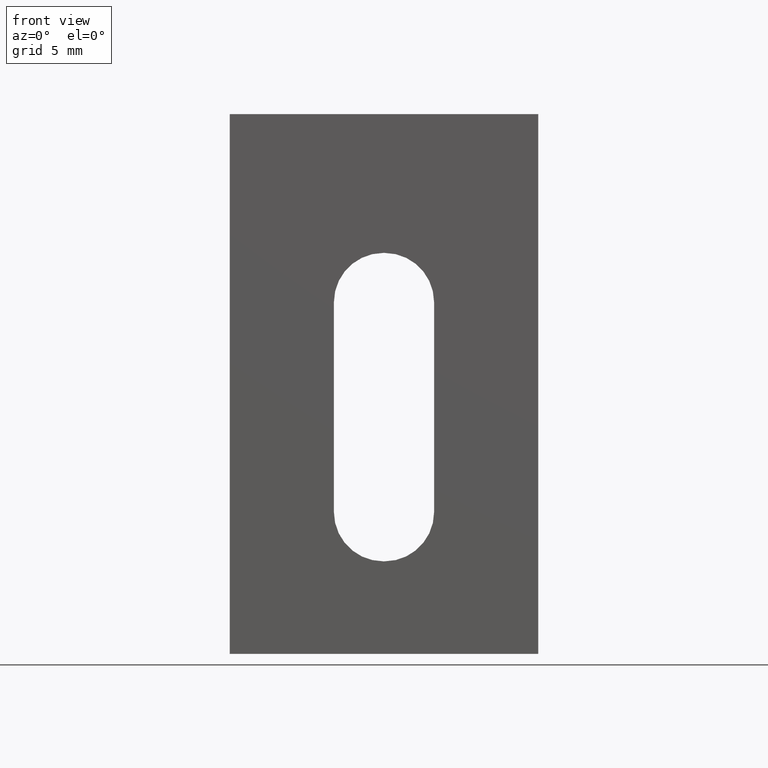
[diagram: clean part render]
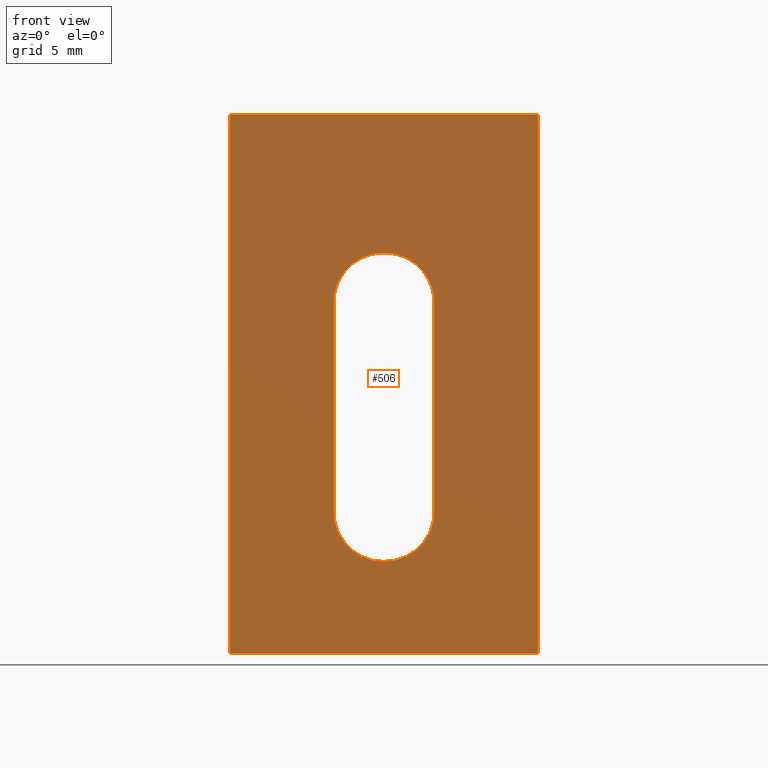
[diagram: same view with one face highlighted and labeled with its STEP entity id]
A machine part, front view. The second image highlights one B-rep face of the part: STEP entity #506.
In plain terms, the highlighted planar face has unit normal (-0, 1, 0).
Its self-contained STEP definition (entity closure, byte-faithful):
#3 = CARTESIAN_POINT ( 'NONE',  ( 0.0000000000000000000, 0.0000000000000000000, 0.0000000000000000000 ) ) ;
#5 = CARTESIAN_POINT ( 'NONE',  ( 20.00000000000000000, 0.0000000000000000000, -35.00000000000000000 ) ) ;
#13 = CARTESIAN_POINT ( 'NONE',  ( 20.00000000000000000, 0.0000000000000000000, 0.0000000000000000000 ) ) ;
#16 = CARTESIAN_POINT ( 'NONE',  ( 10.05000000000000600, -8.673617379884035500E-016, -29.00000000000000700 ) ) ;
#17 = VERTEX_POINT ( 'NONE', #70 ) ;
#19 = VERTEX_POINT ( 'NONE', #13 ) ;
#20 = VERTEX_POINT ( 'NONE', #31 ) ;
#21 = VERTEX_POINT ( 'NONE', #58 ) ;
#24 = VERTEX_POINT ( 'NONE', #68 ) ;
#25 = VERTEX_POINT ( 'NONE', #3 ) ;
#26 = CARTESIAN_POINT ( 'NONE',  ( 13.25000000000000900, -1.422473250300982000E-015, -25.80000000000000800 ) ) ;
#31 = CARTESIAN_POINT ( 'NONE',  ( 10.05000000000000400, -4.336808689942017700E-015, -9.000000000000007100 ) ) ;
#39 = CARTESIAN_POINT ( 'NONE',  ( 6.750000000000008000, -3.781697177629438700E-015, -12.20000000000001000 ) ) ;
#43 = VERTEX_POINT ( 'NONE', #26 ) ;
#45 = VERTEX_POINT ( 'NONE', #39 ) ;
#50 = VERTEX_POINT ( 'NONE', #16 ) ;
#58 = CARTESIAN_POINT ( 'NONE',  ( 6.750000000000008000, -1.422473250300982200E-015, -25.80000000000000400 ) ) ;
#63 = VERTEX_POINT ( 'NONE', #5 ) ;
#68 = CARTESIAN_POINT ( 'NONE',  ( 9.950000000000006400, -8.673617379884035500E-016, -29.00000000000000400 ) ) ;
#69 = CARTESIAN_POINT ( 'NONE',  ( 9.950000000000008200, -4.336808689942017700E-015, -9.000000000000007100 ) ) ;
#70 = CARTESIAN_POINT ( 'NONE',  ( 0.0000000000000000000, 0.0000000000000000000, -35.00000000000000000 ) ) ;
#79 = CARTESIAN_POINT ( 'NONE',  ( 13.25000000000000500, -3.781697177629438700E-015, -12.20000000000000600 ) ) ;
#85 = VERTEX_POINT ( 'NONE', #69 ) ;
#89 = VERTEX_POINT ( 'NONE', #79 ) ;
#108 = PLANE ( 'NONE',  #451 ) ;
#110 = CARTESIAN_POINT ( 'NONE',  ( 10.05000000000000400, 0.0000000000000000000, -12.20000000000000600 ) ) ;
#111 = DIRECTION ( 'NONE',  ( 0.0000000000000000000, 0.0000000000000000000, 1.000000000000000000 ) ) ;
#112 = DIRECTION ( 'NONE',  ( -0.0000000000000000000, 1.000000000000000000, 0.0000000000000000000 ) ) ;
#121 = DIRECTION ( 'NONE',  ( -0.0000000000000000000, 1.000000000000000000, 0.0000000000000000000 ) ) ;
#122 = CARTESIAN_POINT ( 'NONE',  ( 20.00000000000000000, 0.0000000000000000000, 0.0000000000000000000 ) ) ;
#123 = DIRECTION ( 'NONE',  ( 0.0000000000000000000, -0.0000000000000000000, 1.000000000000000000 ) ) ;
#140 = CARTESIAN_POINT ( 'NONE',  ( 6.750000000000008000, -8.673617379884035500E-016, -29.00000000000000400 ) ) ;
#163 = DIRECTION ( 'NONE',  ( 0.0000000000000000000, -1.734723475976807300E-016, 1.000000000000000000 ) ) ;
#168 = VECTOR ( 'NONE', #480, 1000.000000000000000 ) ;
#169 = ORIENTED_EDGE ( 'NONE', *, *, #556, .T. ) ;
#176 = ORIENTED_EDGE ( 'NONE', *, *, #568, .T. ) ;
#179 = FACE_BOUND ( 'NONE', #191, .T. ) ;
#191 = EDGE_LOOP ( 'NONE', ( #318, #253, #208, #202, #169, #249, #363, #348 ) ) ;
#193 = VECTOR ( 'NONE', #463, 1000.000000000000000 ) ;
#196 = LINE ( 'NONE', #543, #375 ) ;
#202 = ORIENTED_EDGE ( 'NONE', *, *, #575, .T. ) ;
#208 = ORIENTED_EDGE ( 'NONE', *, *, #640, .T. ) ;
#210 = ORIENTED_EDGE ( 'NONE', *, *, #639, .T. ) ;
#234 = CIRCLE ( 'NONE', #452, 3.199999999999999700 ) ;
#244 = LINE ( 'NONE', #140, #379 ) ;
#246 = FACE_OUTER_BOUND ( 'NONE', #265, .T. ) ;
#248 = VECTOR ( 'NONE', #485, 1000.000000000000000 ) ;
#249 = ORIENTED_EDGE ( 'NONE', *, *, #567, .T. ) ;
#253 = ORIENTED_EDGE ( 'NONE', *, *, #565, .T. ) ;
#255 = ORIENTED_EDGE ( 'NONE', *, *, #646, .F. ) ;
#261 = LINE ( 'NONE', #524, #360 ) ;
#265 = EDGE_LOOP ( 'NONE', ( #176, #353, #255, #210 ) ) ;
#267 = CIRCLE ( 'NONE', #444, 3.200000000000001500 ) ;
#277 = VECTOR ( 'NONE', #533, 1000.000000000000000 ) ;
#292 = CIRCLE ( 'NONE', #622, 3.200000000000001500 ) ;
#305 = LINE ( 'NONE', #457, #193 ) ;
#308 = LINE ( 'NONE', #459, #168 ) ;
#318 = ORIENTED_EDGE ( 'NONE', *, *, #564, .T. ) ;
#338 = LINE ( 'NONE', #531, #277 ) ;
#342 = CIRCLE ( 'NONE', #607, 3.199999999999999700 ) ;
#348 = ORIENTED_EDGE ( 'NONE', *, *, #561, .T. ) ;
#353 = ORIENTED_EDGE ( 'NONE', *, *, #569, .F. ) ;
#356 = LINE ( 'NONE', #462, #248 ) ;
#360 = VECTOR ( 'NONE', #527, 1000.000000000000000 ) ;
#363 = ORIENTED_EDGE ( 'NONE', *, *, #647, .T. ) ;
#366 = VECTOR ( 'NONE', #530, 1000.000000000000000 ) ;
#375 = VECTOR ( 'NONE', #545, 1000.000000000000000 ) ;
#379 = VECTOR ( 'NONE', #163, 1000.000000000000000 ) ;
#388 = LINE ( 'NONE', #520, #366 ) ;
#444 = AXIS2_PLACEMENT_3D ( 'NONE', #454, #483, #460 ) ;
#451 = AXIS2_PLACEMENT_3D ( 'NONE', #122, #121, #123 ) ;
#452 = AXIS2_PLACEMENT_3D ( 'NONE', #110, #112, #111 ) ;
#454 = CARTESIAN_POINT ( 'NONE',  ( 10.05000000000000800, 0.0000000000000000000, -25.80000000000000800 ) ) ;
#457 = CARTESIAN_POINT ( 'NONE',  ( 20.00000000000000000, 0.0000000000000000000, -35.00000000000000000 ) ) ;
#459 = CARTESIAN_POINT ( 'NONE',  ( 0.0000000000000000000, 0.0000000000000000000, 0.0000000000000000000 ) ) ;
#460 = DIRECTION ( 'NONE',  ( 0.0000000000000000000, 0.0000000000000000000, 1.000000000000000000 ) ) ;
#462 = CARTESIAN_POINT ( 'NONE',  ( 13.25000000000000900, -8.673617379884035500E-016, -29.00000000000000700 ) ) ;
#463 = DIRECTION ( 'NONE',  ( -1.000000000000000000, -0.0000000000000000000, -0.0000000000000000000 ) ) ;
#468 = DIRECTION ( 'NONE',  ( 0.0000000000000000000, 0.0000000000000000000, 1.000000000000000000 ) ) ;
#471 = CARTESIAN_POINT ( 'NONE',  ( 9.950000000000008200, 0.0000000000000000000, -25.80000000000000400 ) ) ;
#472 = DIRECTION ( 'NONE',  ( -0.0000000000000000000, 1.000000000000000000, 0.0000000000000000000 ) ) ;
#474 = CARTESIAN_POINT ( 'NONE',  ( 9.950000000000008200, 0.0000000000000000000, -12.20000000000000800 ) ) ;
#478 = DIRECTION ( 'NONE',  ( 0.0000000000000000000, 0.0000000000000000000, 1.000000000000000000 ) ) ;
#480 = DIRECTION ( 'NONE',  ( 0.0000000000000000000, 0.0000000000000000000, -1.000000000000000000 ) ) ;
#482 = DIRECTION ( 'NONE',  ( -0.0000000000000000000, 1.000000000000000000, 0.0000000000000000000 ) ) ;
#483 = DIRECTION ( 'NONE',  ( -0.0000000000000000000, 1.000000000000000000, 0.0000000000000000000 ) ) ;
#485 = DIRECTION ( 'NONE',  ( 1.734723475976806800E-016, 1.734723475976806800E-016, -1.000000000000000000 ) ) ;
#506 = ADVANCED_FACE ( 'NONE', ( #179, #246 ), #108, .F. ) ;
#520 = CARTESIAN_POINT ( 'NONE',  ( 6.750000000000008000, -4.336808689942017700E-015, -9.000000000000007100 ) ) ;
#524 = CARTESIAN_POINT ( 'NONE',  ( 20.00000000000000000, 0.0000000000000000000, 0.0000000000000000000 ) ) ;
#527 = DIRECTION ( 'NONE',  ( 0.0000000000000000000, 0.0000000000000000000, -1.000000000000000000 ) ) ;
#530 = DIRECTION ( 'NONE',  ( 1.000000000000000000, 0.0000000000000000000, 2.668805347656627700E-016 ) ) ;
#531 = CARTESIAN_POINT ( 'NONE',  ( 6.750000000000008000, -8.673617379884035500E-016, -29.00000000000000400 ) ) ;
#533 = DIRECTION ( 'NONE',  ( -1.000000000000000000, -0.0000000000000000000, 5.337610695313252400E-016 ) ) ;
#543 = CARTESIAN_POINT ( 'NONE',  ( 20.00000000000000000, 0.0000000000000000000, 0.0000000000000000000 ) ) ;
#545 = DIRECTION ( 'NONE',  ( -1.000000000000000000, -0.0000000000000000000, -0.0000000000000000000 ) ) ;
#556 = EDGE_CURVE ( 'NONE', #21, #45, #244, .T. ) ;
#561 = EDGE_CURVE ( 'NONE', #20, #89, #234, .T. ) ;
#564 = EDGE_CURVE ( 'NONE', #89, #43, #356, .T. ) ;
#565 = EDGE_CURVE ( 'NONE', #43, #50, #267, .T. ) ;
#567 = EDGE_CURVE ( 'NONE', #45, #85, #342, .T. ) ;
#568 = EDGE_CURVE ( 'NONE', #25, #17, #308, .T. ) ;
#569 = EDGE_CURVE ( 'NONE', #63, #17, #305, .T. ) ;
#575 = EDGE_CURVE ( 'NONE', #24, #21, #292, .T. ) ;
#607 = AXIS2_PLACEMENT_3D ( 'NONE', #474, #482, #478 ) ;
#622 = AXIS2_PLACEMENT_3D ( 'NONE', #471, #472, #468 ) ;
#639 = EDGE_CURVE ( 'NONE', #19, #25, #196, .T. ) ;
#640 = EDGE_CURVE ( 'NONE', #50, #24, #338, .T. ) ;
#646 = EDGE_CURVE ( 'NONE', #19, #63, #261, .T. ) ;
#647 = EDGE_CURVE ( 'NONE', #85, #20, #388, .T. ) ;